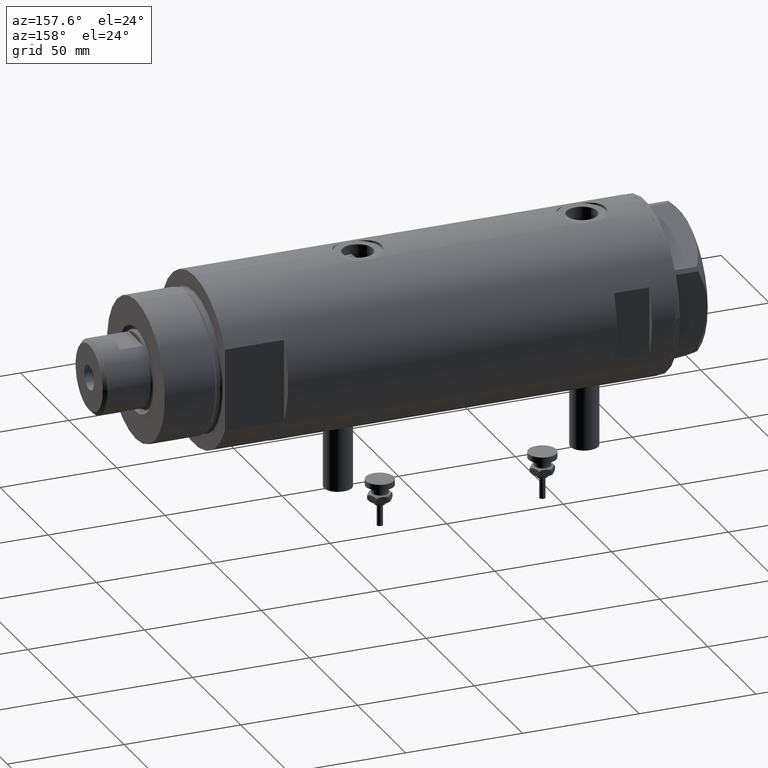
[diagram: clean part render]
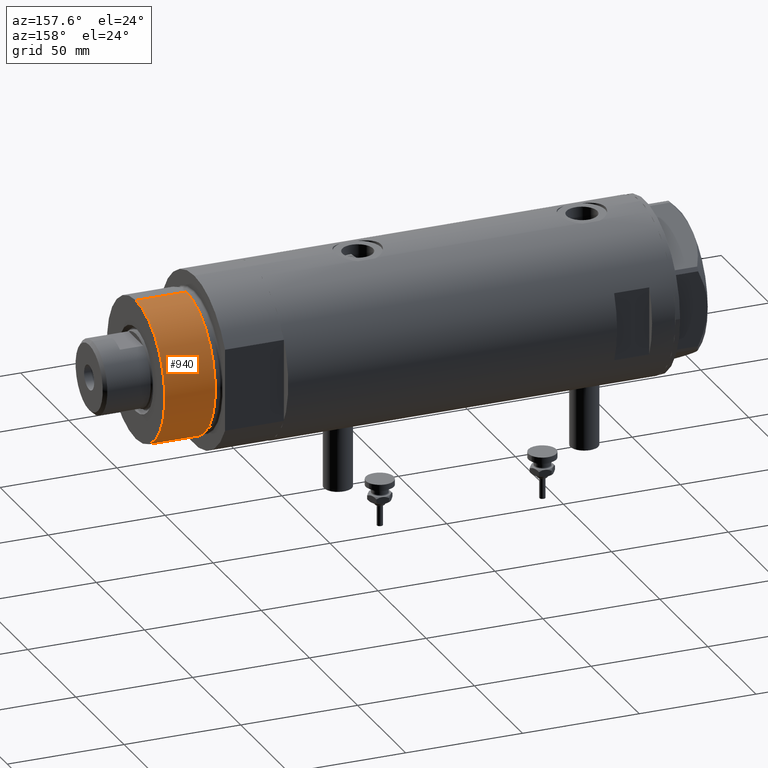
[diagram: same view with one face highlighted and labeled with its STEP entity id]
A machine part, auxiliary view. The second image highlights one B-rep face of the part: STEP entity #940.
In plain terms, the highlighted cylindrical surface (partial cylindrical patch) has radius 30 mm, axis along (-1, -0, 0).
Its self-contained STEP definition (entity closure, byte-faithful):
#286 = CIRCLE ( 'NONE', #485, 30.00000000000000000 ) ;
#485 = AXIS2_PLACEMENT_3D ( 'NONE', #3707, #2737, #504 ) ;
#504 = DIRECTION ( 'NONE',  ( 1.000000000000000000, 0.000000000000000000, 0.000000000000000000 ) ) ;
#566 = ORIENTED_EDGE ( 'NONE', *, *, #3325, .F. ) ;
#738 = VERTEX_POINT ( 'NONE', #1959 ) ;
#911 = ORIENTED_EDGE ( 'NONE', *, *, #5512, .T. ) ;
#940 = ADVANCED_FACE ( 'NONE', ( #4453 ), #3111, .T. ) ;
#1016 = CARTESIAN_POINT ( 'NONE',  ( -30.00000000000000000, 0.000000000000000000, 50.19999999999999574 ) ) ;
#1246 = DIRECTION ( 'NONE',  ( -0.000000000000000000, -0.000000000000000000, -1.000000000000000000 ) ) ;
#1273 = VERTEX_POINT ( 'NONE', #3937 ) ;
#1724 = EDGE_LOOP ( 'NONE', ( #3201, #1901, #911, #566 ) ) ;
#1760 = CARTESIAN_POINT ( 'NONE',  ( -30.00000000000000000, 0.000000000000000000, 50.19999999999999574 ) ) ;
#1901 = ORIENTED_EDGE ( 'NONE', *, *, #2329, .T. ) ;
#1959 = CARTESIAN_POINT ( 'NONE',  ( 30.00000000000000000, 3.673940397442058389E-15, 28.57384048104054486 ) ) ;
#2039 = EDGE_CURVE ( 'NONE', #2070, #2616, #3410, .T. ) ;
#2070 = VERTEX_POINT ( 'NONE', #3034 ) ;
#2329 = EDGE_CURVE ( 'NONE', #2070, #738, #2556, .T. ) ;
#2556 = LINE ( 'NONE', #2985, #3610 ) ;
#2616 = VERTEX_POINT ( 'NONE', #1016 ) ;
#2692 = CARTESIAN_POINT ( 'NONE',  ( 0.000000000000000000, 0.000000000000000000, 50.19999999999999574 ) ) ;
#2737 = DIRECTION ( 'NONE',  ( -0.000000000000000000, -0.000000000000000000, 1.000000000000000000 ) ) ;
#2985 = CARTESIAN_POINT ( 'NONE',  ( 30.00000000000000000, 3.673940397442058389E-15, 50.19999999999999574 ) ) ;
#3034 = CARTESIAN_POINT ( 'NONE',  ( 30.00000000000000000, 3.673940397442058389E-15, 50.19999999999999574 ) ) ;
#3111 = CYLINDRICAL_SURFACE ( 'NONE', #5159, 30.00000000000000000 ) ;
#3201 = ORIENTED_EDGE ( 'NONE', *, *, #2039, .F. ) ;
#3227 = VECTOR ( 'NONE', #1246, 1000.000000000000000 ) ;
#3325 = EDGE_CURVE ( 'NONE', #2616, #1273, #4425, .T. ) ;
#3410 = CIRCLE ( 'NONE', #5058, 30.00000000000000000 ) ;
#3582 = DIRECTION ( 'NONE',  ( 0.000000000000000000, 0.000000000000000000, 1.000000000000000000 ) ) ;
#3610 = VECTOR ( 'NONE', #5306, 1000.000000000000000 ) ;
#3707 = CARTESIAN_POINT ( 'NONE',  ( 0.000000000000000000, 0.000000000000000000, 28.57384048104054486 ) ) ;
#3937 = CARTESIAN_POINT ( 'NONE',  ( -30.00000000000000000, 0.000000000000000000, 28.57384048104054486 ) ) ;
#4045 = CARTESIAN_POINT ( 'NONE',  ( 0.000000000000000000, 0.000000000000000000, 50.19999999999999574 ) ) ;
#4425 = LINE ( 'NONE', #1760, #3227 ) ;
#4453 = FACE_OUTER_BOUND ( 'NONE', #1724, .T. ) ;
#5058 = AXIS2_PLACEMENT_3D ( 'NONE', #4045, #3582, #5789 ) ;
#5159 = AXIS2_PLACEMENT_3D ( 'NONE', #2692, #5804, #5837 ) ;
#5306 = DIRECTION ( 'NONE',  ( -0.000000000000000000, -0.000000000000000000, -1.000000000000000000 ) ) ;
#5512 = EDGE_CURVE ( 'NONE', #738, #1273, #286, .T. ) ;
#5789 = DIRECTION ( 'NONE',  ( 1.000000000000000000, 0.000000000000000000, 0.000000000000000000 ) ) ;
#5804 = DIRECTION ( 'NONE',  ( -0.000000000000000000, -0.000000000000000000, -1.000000000000000000 ) ) ;
#5837 = DIRECTION ( 'NONE',  ( -1.000000000000000000, 0.000000000000000000, 0.000000000000000000 ) ) ;